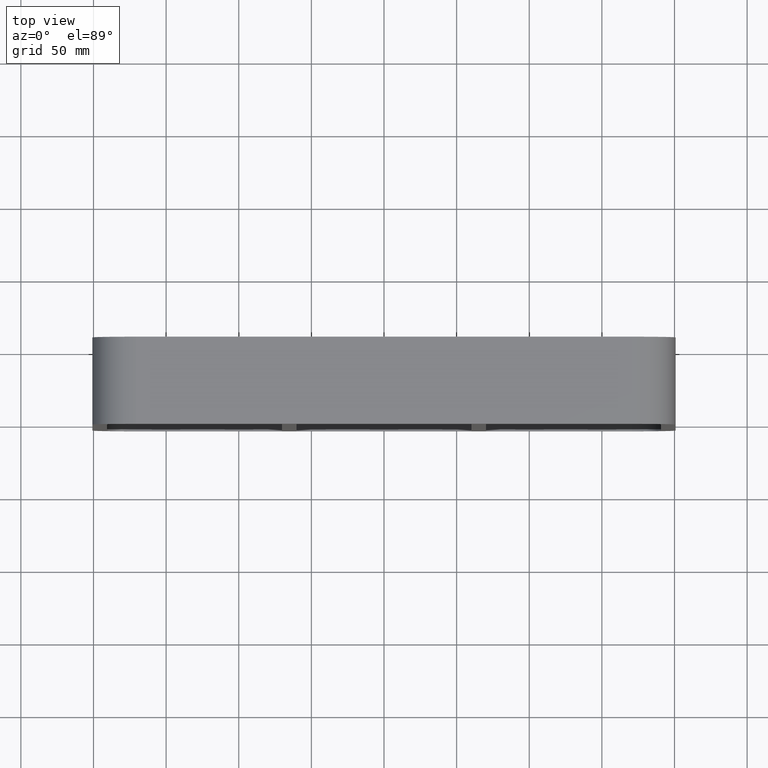
[diagram: clean part render]
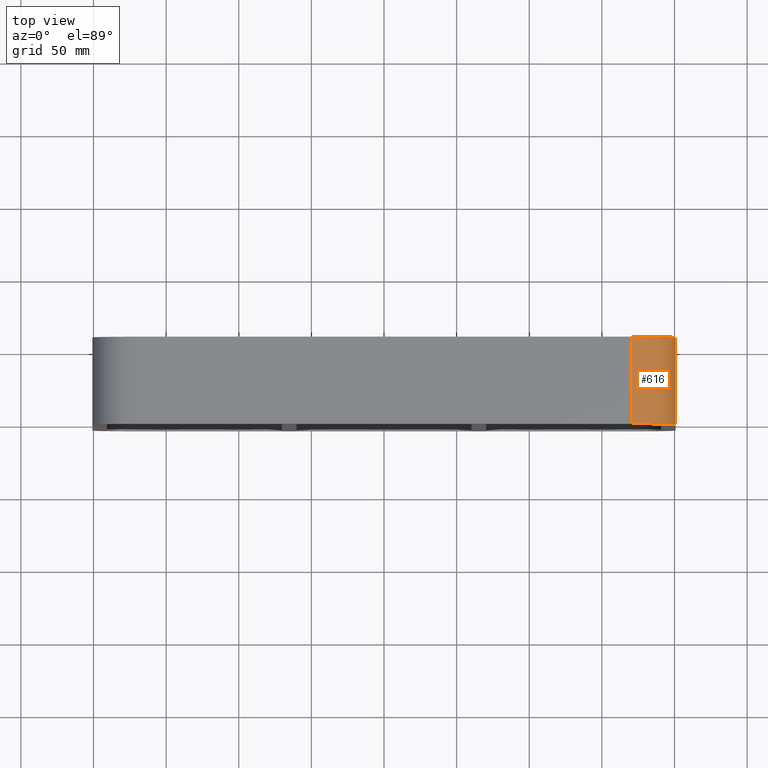
[diagram: same view with one face highlighted and labeled with its STEP entity id]
A machine part, top view. The second image highlights one B-rep face of the part: STEP entity #616.
In plain terms, the highlighted cylindrical surface (partial cylindrical patch) has radius 30 mm, axis along (0, -1, 0).
Its self-contained STEP definition (entity closure, byte-faithful):
#444=CARTESIAN_POINT('',(200.75000000000003,-3.0,118.99999999999999));
#445=VERTEX_POINT('',#444);
#452=CARTESIAN_POINT('',(170.75000000000003,-3.0,149.0));
#453=VERTEX_POINT('',#452);
#454=CARTESIAN_POINT('',(170.75000000000003,-3.0,118.99999999999999));
#455=DIRECTION('',(0.0,1.0,0.0));
#456=DIRECTION('',(0.707106781186547,0.0,0.707106781186547));
#457=AXIS2_PLACEMENT_3D('',#454,#455,#456);
#458=CIRCLE('',#457,30.0);
#459=EDGE_CURVE('',#453,#445,#458,.T.);
#574=CARTESIAN_POINT('',(200.75000000000003,57.0,118.99999999999999));
#575=VERTEX_POINT('',#574);
#582=CARTESIAN_POINT('',(200.75000000000003,-3.0,118.99999999999999));
#583=DIRECTION('',(0.0,1.0,0.0));
#584=VECTOR('',#583,60.0);
#585=LINE('',#582,#584);
#586=EDGE_CURVE('',#445,#575,#585,.T.);
#592=CARTESIAN_POINT('',(170.75000000000003,0.0,118.99999999999999));
#593=DIRECTION('',(0.0,-1.0,0.0));
#594=DIRECTION('',(0.707106781186547,0.0,0.707106781186547));
#595=AXIS2_PLACEMENT_3D('',#592,#593,#594);
#596=CYLINDRICAL_SURFACE('',#595,30.000000000000004);
#597=ORIENTED_EDGE('',*,*,#459,.T.);
#598=ORIENTED_EDGE('',*,*,#586,.T.);
#599=CARTESIAN_POINT('',(170.75000000000003,57.0,149.0));
#600=VERTEX_POINT('',#599);
#601=CARTESIAN_POINT('',(170.75000000000003,57.0,118.99999999999999));
#602=DIRECTION('',(0.0,-1.0,0.0));
#603=DIRECTION('',(0.707106781186547,0.0,0.707106781186547));
#604=AXIS2_PLACEMENT_3D('',#601,#602,#603);
#605=CIRCLE('',#604,30.0);
#606=EDGE_CURVE('',#575,#600,#605,.T.);
#607=ORIENTED_EDGE('',*,*,#606,.T.);
#608=CARTESIAN_POINT('',(170.75000000000003,57.0,149.0));
#609=DIRECTION('',(0.0,-1.0,0.0));
#610=VECTOR('',#609,60.0);
#611=LINE('',#608,#610);
#612=EDGE_CURVE('',#600,#453,#611,.T.);
#613=ORIENTED_EDGE('',*,*,#612,.T.);
#614=EDGE_LOOP('',(#597,#598,#607,#613));
#615=FACE_OUTER_BOUND('',#614,.T.);
#616=ADVANCED_FACE('',(#615),#596,.T.);